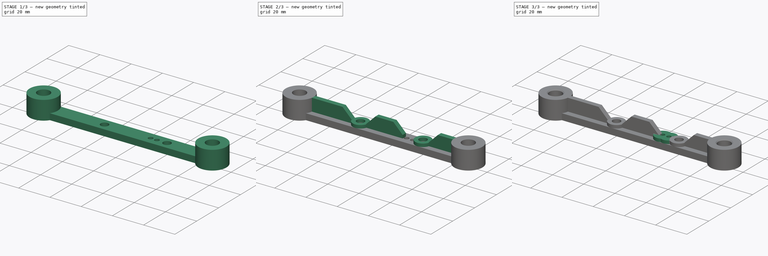
[diagram: build sequence overview — one tinted view per stage of 3, left to right]
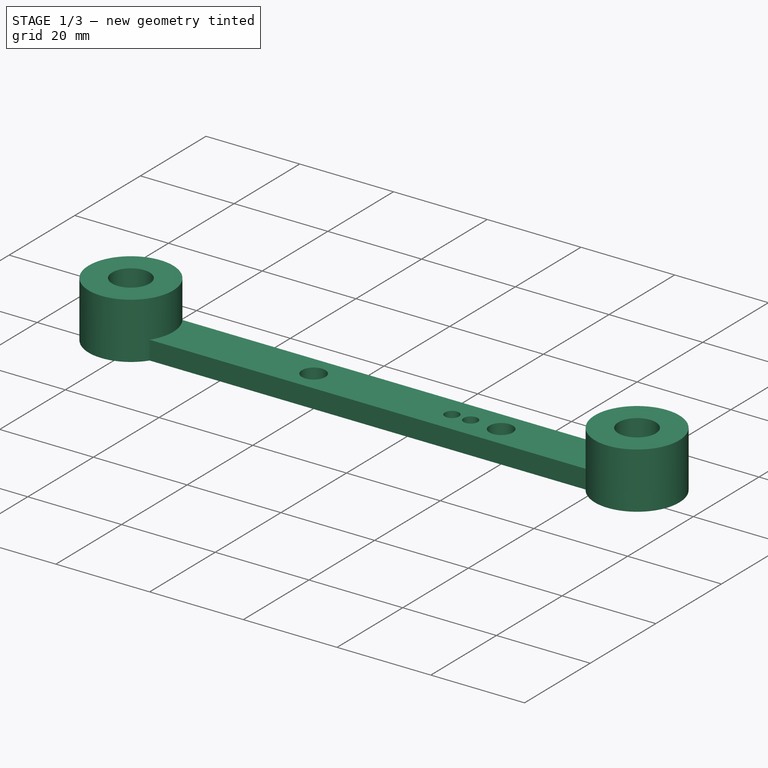
[diagram: stage 1 of 3 — iso view after this stage's code; geometry added in this stage tinted green]
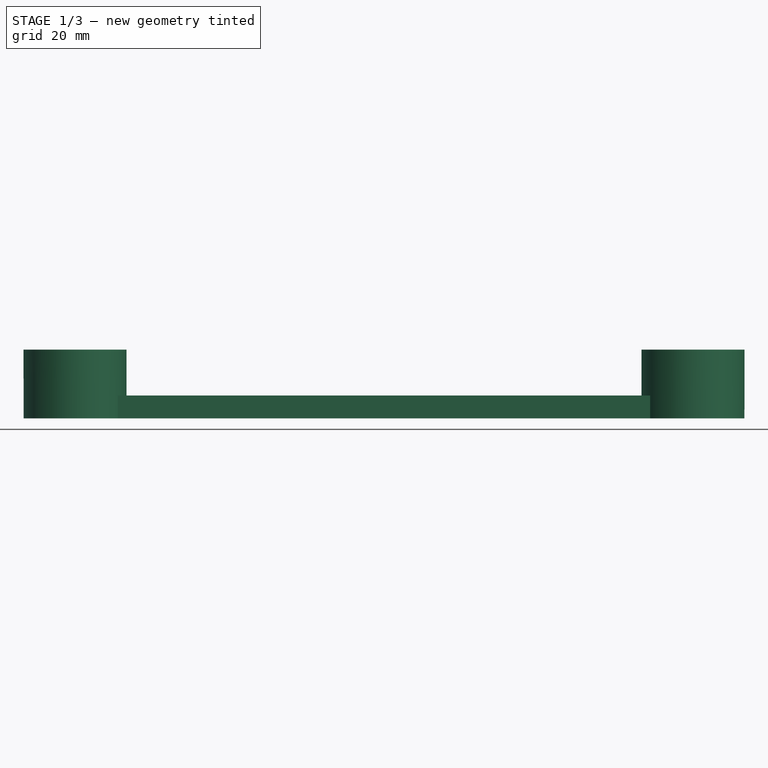
[diagram: stage 1 of 3 — front view after this stage's code; geometry added in this stage tinted green]
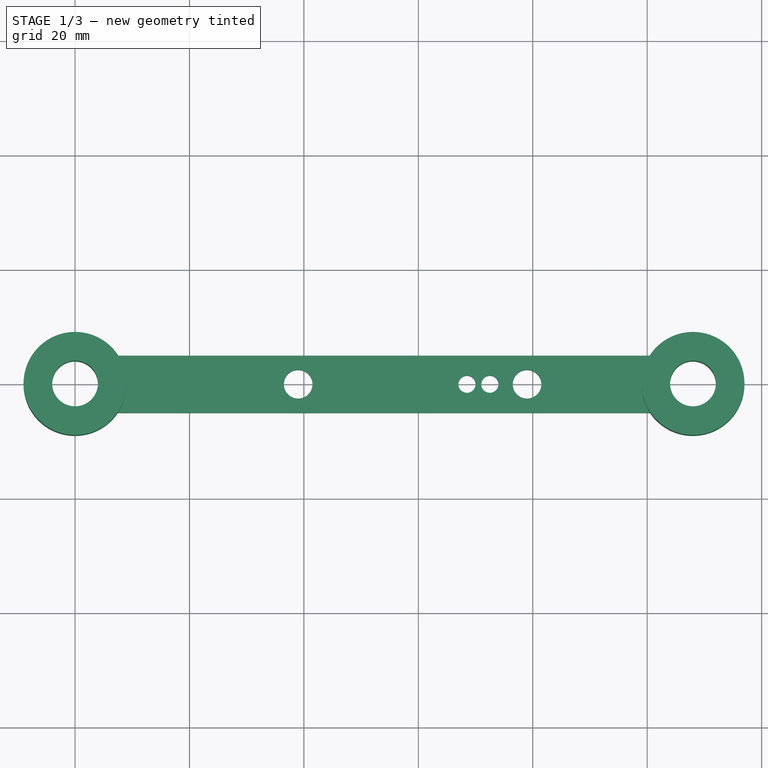
[diagram: stage 1 of 3 — top view after this stage's code; geometry added in this stage tinted green]
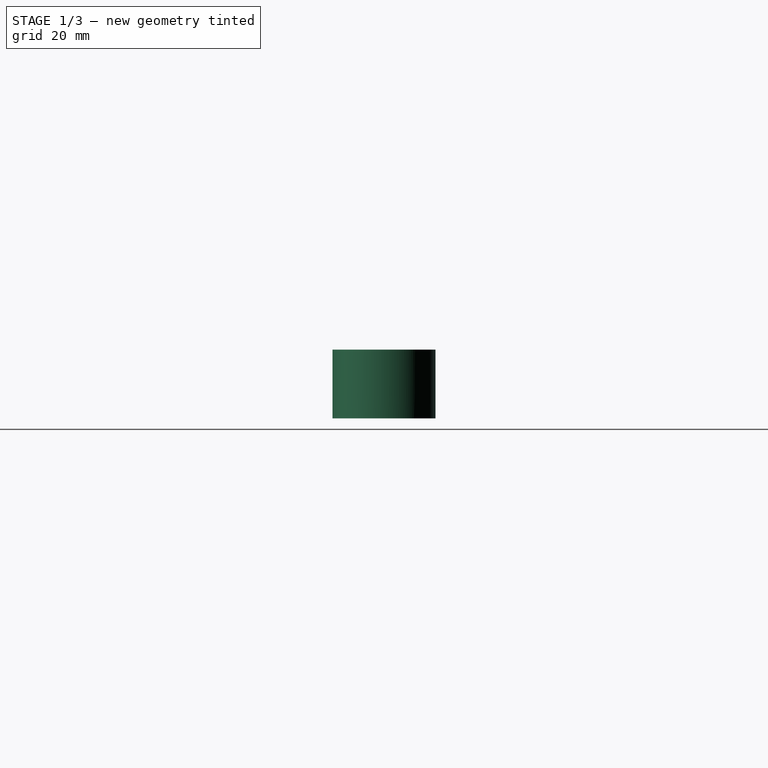
[diagram: stage 1 of 3 — right view after this stage's code; geometry added in this stage tinted green]
FCSTD DOCUMENT  (FreeCAD 0.19R24276 (Git))
Label: Guillotine_part_1_bottom
License: All rights reserved
LicenseURL: http://en.wikipedia.org/wiki/All_rights_reserved
objects: Sketcher::SketchObject×6, PartDesign::Pad×6, PartDesign::Chamfer×1, PartDesign::Body×1
note: 21 computed .brp shape members not serialized (recipe doc carries the construction recipe); baked Part::Feature solids carry a one-line shape summary decoded from their .brp

FEATURE [Sketcher::SketchObject] Sketch
  FullyConstrained = false
  MapMode = 5
  Support = -> [XY_Plane]
  sketch-geometry (12):
    g0: Circle CenterX=0 CenterY=0 CenterZ=0 NormalX=0 NormalY=0 NormalZ=1 AngleXU=0 Radius=4
    g1: ArcOfCircle CenterX=0 CenterY=0 CenterZ=0 NormalX=0 NormalY=0 NormalZ=1 AngleXU=0 Radius=9 StartAngle=0.589031 EndAngle=5.69415
    g2: LineSegment StartX=7.48331 StartY=5 StartZ=0 EndX=100.517 EndY=5 EndZ=0
    g3: LineSegment StartX=7.48331 StartY=-5 StartZ=0 EndX=100.517 EndY=-5 EndZ=0
    g4: Circle CenterX=108 CenterY=0 CenterZ=0 NormalX=0 NormalY=0 NormalZ=1 AngleXU=0 Radius=4
    g5: ArcOfCircle CenterX=108 CenterY=0 CenterZ=0 NormalX=0 NormalY=0 NormalZ=1 AngleXU=0 Radius=9 StartAngle=3.73062 EndAngle=8.83575
    g6: LineSegment StartX=0 StartY=0 StartZ=0 EndX=7.48331 EndY=0 EndZ=0
    g7: LineSegment StartX=54 StartY=41.0702 StartZ=0 EndX=54 EndY=0 EndZ=0
    g8: Circle CenterX=39 CenterY=0 CenterZ=0 NormalX=0 NormalY=0 NormalZ=1 AngleXU=0 Radius=2.5
    g9: Circle CenterX=79 CenterY=0 CenterZ=0 NormalX=0 NormalY=0 NormalZ=1 AngleXU=0 Radius=2.5
    g10: Circle CenterX=72.5 CenterY=0 CenterZ=0 NormalX=0 NormalY=0 NormalZ=1 AngleXU=0 Radius=1.5
    g11: Circle CenterX=68.5 CenterY=0 CenterZ=0 NormalX=0 NormalY=0 NormalZ=1 AngleXU=0 Radius=1.5
  constraints (33):
    c: Coincident(g0,g-1)
    c: Diameter(g0) = 8
    c: Coincident(g1,g-1)
    c: Diameter(g1) = 18
    c: Horizontal(g2)
    c: Horizontal(g3)
    c: Diameter(g4) = 8
    c: Diameter(g5) = 18
    c: Coincident(g5,g4)
    c: Coincident(g5,g3)
    c: Coincident(g5,g2)
    c: Coincident(g1,g2)
    c: Coincident(g1,g3)
    c: Coincident(g6,g0)
    c: PointOnObject(g6,g-1)
    c: Symmetric(g1,g1,g6)
    c: DistanceY(g1,g1) = 10
    c: DistanceX(g0,g4) = 108
    c: Horizontal(g4,g0)
    c: Vertical(g7)
    c: Symmetric(g0,g4,g7)
    c: PointOnObject(g8,g-1)
    c: PointOnObject(g9,g-1)
    c: Diameter(g8) = 5
    c: Equal(g8,g9)
    c: DistanceX(g8,g7) = 15
    c: DistanceX(g7,g9) = 25
    c: PointOnObject(g10,g-1)
    c: PointOnObject(g11,g-1)
    c: Diameter(g10) = 3
    c: Equal(g10,g11)
    c: DistanceX(g10,g9) = 6.5
    c: DistanceX(g11,g10) = 4
FEATURE [PartDesign::Pad] Pad
  Direction = (1,1,1)
  Length = 4
  Length2 = 100
  Profile = -> Sketch
  Type = 0
FEATURE [Sketcher::SketchObject] Sketch001
  FullyConstrained = true
  MapMode = 5
  Placement = pos=(0,0,4) rot=(0,0,1;0rad)
  Support = -> [Pad]
  sketch-geometry (4):
    g0: Circle CenterX=0 CenterY=0 CenterZ=0 NormalX=0 NormalY=0 NormalZ=1 AngleXU=0 Radius=9
    g1: Circle CenterX=108 CenterY=0 CenterZ=0 NormalX=0 NormalY=0 NormalZ=1 AngleXU=0 Radius=9
    g2: Circle CenterX=0 CenterY=0 CenterZ=0 NormalX=0 NormalY=0 NormalZ=1 AngleXU=0 Radius=4
    g3: Circle CenterX=108 CenterY=0 CenterZ=0 NormalX=0 NormalY=0 NormalZ=1 AngleXU=0 Radius=4
  constraints (9):
    c: Coincident(g0,g-1)
    c: PointOnObject(g1,g-1)
    c: DistanceX(g0,g1) = 108
    c: Diameter(g0) = 18
    c: Equal(g0,g1)
    c: Coincident(g2,g0)
    c: Coincident(g3,g1)
    c: Diameter(g3) = 8
    c: Equal(g3,g2)
FEATURE [PartDesign::Pad] Pad001
  BaseFeature = -> Pad
  Direction = (1,1,1)
  Length = 8
  Length2 = 100
  Profile = -> Sketch001
  Type = 0
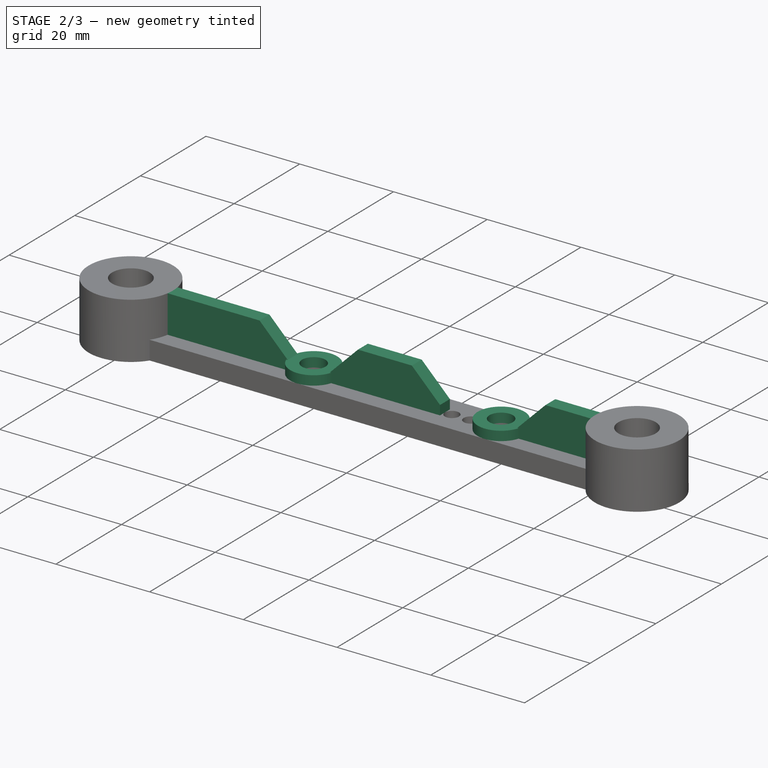
[diagram: stage 2 of 3 — iso view after this stage's code; geometry added in this stage tinted green]
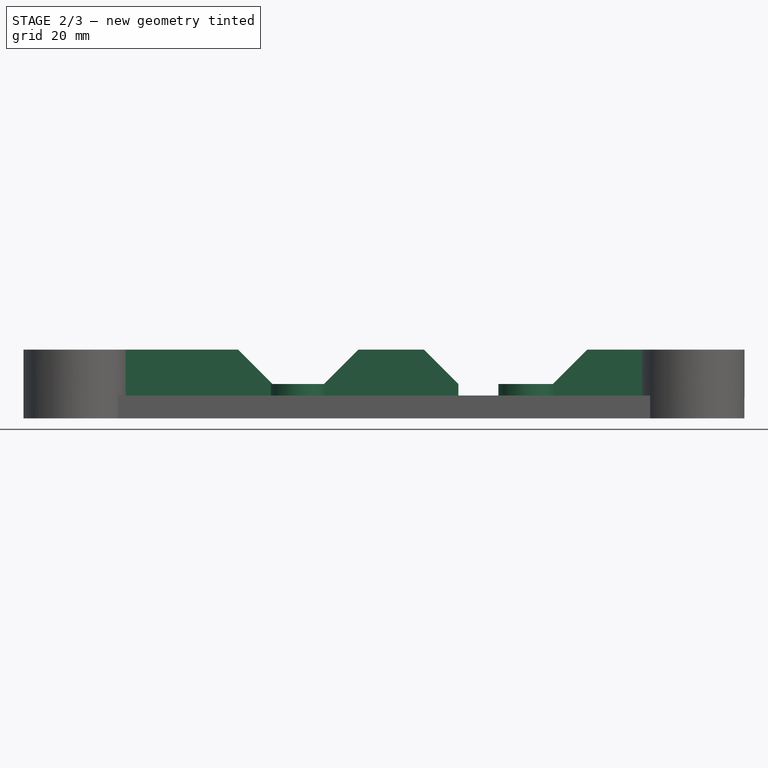
[diagram: stage 2 of 3 — front view after this stage's code; geometry added in this stage tinted green]
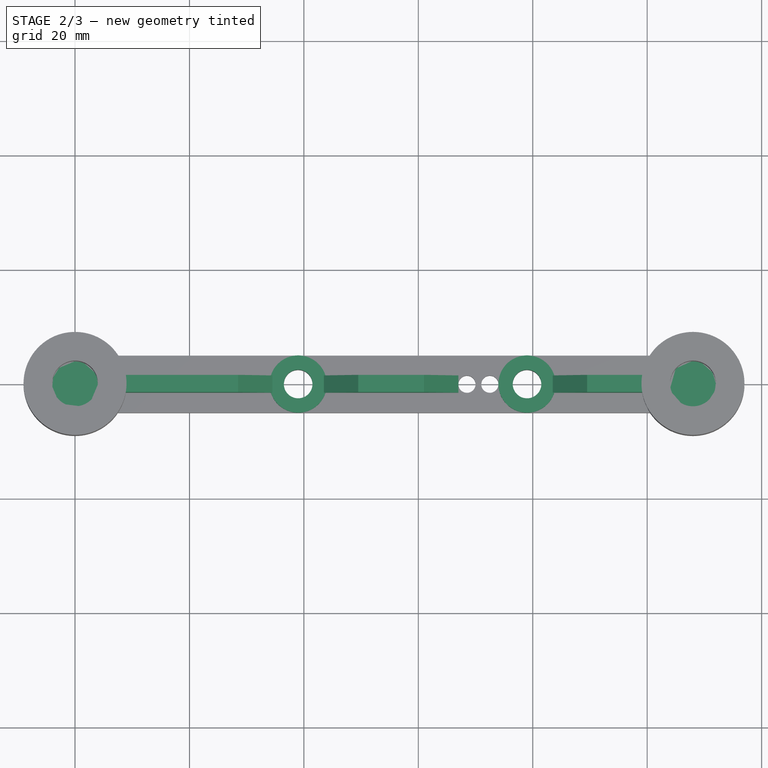
[diagram: stage 2 of 3 — top view after this stage's code; geometry added in this stage tinted green]
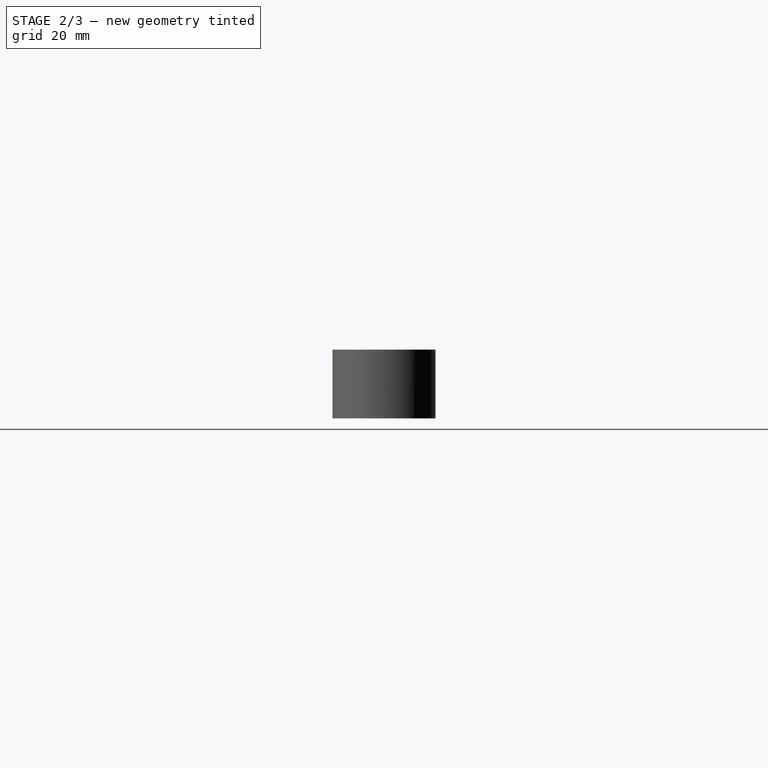
[diagram: stage 2 of 3 — right view after this stage's code; geometry added in this stage tinted green]
FEATURE [Sketcher::SketchObject] Sketch002
  FullyConstrained = true
  MapMode = 5
  Placement = pos=(0,0,0) rot=(1,0,0;3.14159rad)
  Support = -> [Pad001]
  sketch-geometry (2):
    g0: Circle CenterX=108 CenterY=0 CenterZ=0 NormalX=0 NormalY=0 NormalZ=1 AngleXU=0 Radius=4
    g1: Circle CenterX=0 CenterY=0 CenterZ=0 NormalX=0 NormalY=0 NormalZ=1 AngleXU=0 Radius=4
  constraints (5):
    c: PointOnObject(g0,g-1)
    c: Coincident(g1,g-1)
    c: DistanceX(g1,g0) = 108
    c: Diameter(g1) = 8
    c: Equal(g1,g0)
FEATURE [PartDesign::Pad] Pad002
  BaseFeature = -> Pad001
  Direction = (1,1,1)
  Length = 3
  Length2 = 100
  Profile = -> Sketch002
  Reversed = true
  Type = 0
FEATURE [Sketcher::SketchObject] Sketch003
  AttachmentOffset = pos=(0,0,-5) rot=(0,0,1;0rad)
  FullyConstrained = false
  MapMode = 5
  Placement = pos=(0,-9e-16,-1.1e-15) rot=(1,0,0;1.5708rad)
  Support = -> [Pad002]
  sketch-geometry (41):
    g0: LineSegment StartX=8 StartY=12 StartZ=0 EndX=34.5 EndY=12 EndZ=0
    g1: LineSegment StartX=100 StartY=12 StartZ=0 EndX=100 EndY=4 EndZ=0
    g2: LineSegment StartX=100 StartY=4 StartZ=0 EndX=8 EndY=4 EndZ=0
    g3: LineSegment StartX=8 StartY=4 StartZ=0 EndX=8 EndY=12 EndZ=0
    g4: LineSegment StartX=39 StartY=14.3034 StartZ=0 EndX=39 EndY=-8.22533 EndZ=0
    g5: LineSegment StartX=79 StartY=29.8425 StartZ=0 EndX=79 EndY=-7.60026 EndZ=0
    g6: LineSegment StartX=54 StartY=36.9878 StartZ=0 EndX=54 EndY=-15.3094 EndZ=0
    g7: LineSegment StartX=34.5 StartY=14.3034 StartZ=0 EndX=43.5 EndY=14.3034 EndZ=0
    g8: LineSegment StartX=43.5 StartY=14.3034 StartZ=0 EndX=43.5 EndY=4 EndZ=0
    g9: LineSegment StartX=43.5 StartY=4 StartZ=0 EndX=34.5 EndY=4 EndZ=0
    g10: LineSegment StartX=34.5 StartY=4 StartZ=0 EndX=34.5 EndY=14.3034 EndZ=0
    g11: LineSegment StartX=74.5 StartY=4 StartZ=0 EndX=83.5 EndY=4 EndZ=0
    g12: LineSegment StartX=83.5 StartY=4 StartZ=0 EndX=83.5 EndY=29.8425 EndZ=0
    g13: LineSegment StartX=83.5 StartY=29.8425 StartZ=0 EndX=74.5 EndY=29.8425 EndZ=0
    g14: LineSegment StartX=74.5 StartY=29.8425 StartZ=0 EndX=74.5 EndY=4 EndZ=0
    g15: LineSegment StartX=43.5 StartY=12 StartZ=0 EndX=74.5 EndY=12 EndZ=0
    g16: LineSegment StartX=34.5 StartY=4 StartZ=0 EndX=34.5 EndY=12 EndZ=0
    g17: LineSegment StartX=43.5 StartY=4 StartZ=0 EndX=43.5 EndY=12 EndZ=0
    g18: LineSegment StartX=34.5 StartY=4 StartZ=0 EndX=8 EndY=4 EndZ=0
    g19: LineSegment StartX=43.5 StartY=4 StartZ=0 EndX=74.5 EndY=4 EndZ=0
    g20: LineSegment StartX=83.5 StartY=12 StartZ=0 EndX=100 EndY=12 EndZ=0
    g21: LineSegment StartX=74.5 StartY=4 StartZ=0 EndX=74.5 EndY=12 EndZ=0
    g22: LineSegment StartX=83.5 StartY=4 StartZ=0 EndX=83.5 EndY=12 EndZ=0
    g23: LineSegment StartX=83.5 StartY=4 StartZ=0 EndX=100 EndY=4 EndZ=0
    g24: LineSegment StartX=72.5 StartY=21.7365 StartZ=0 EndX=72.5 EndY=-3.40455 EndZ=0
    g25: LineSegment StartX=68.5 StartY=-3.4812 StartZ=0 EndX=68.5 EndY=23.9594 EndZ=0
    g26: LineSegment StartX=67 StartY=4 StartZ=0 EndX=67 EndY=12 EndZ=0
    g27: LineSegment StartX=67 StartY=12 StartZ=0 EndX=43.5 EndY=12 EndZ=0
    g28: LineSegment StartX=67 StartY=12 StartZ=0 EndX=67 EndY=4 EndZ=0
    g29: LineSegment StartX=43.5 StartY=4 StartZ=0 EndX=67 EndY=4 EndZ=0
    g30: LineSegment StartX=83.5 StartY=6 StartZ=0 EndX=89.5 EndY=12 EndZ=0
    g31: LineSegment StartX=83.5 StartY=4 StartZ=0 EndX=83.5 EndY=6 EndZ=0
    g32: LineSegment StartX=89.5 StartY=12 StartZ=0 EndX=100 EndY=12 EndZ=0
    g33: LineSegment StartX=28.5 StartY=12 StartZ=0 EndX=34.5 EndY=6 EndZ=0
    g34: LineSegment StartX=34.5 StartY=4 StartZ=0 EndX=34.5 EndY=6 EndZ=0
    g35: LineSegment StartX=28.5 StartY=12 StartZ=0 EndX=8 EndY=12 EndZ=0
    g36: LineSegment StartX=43.5 StartY=6 StartZ=0 EndX=49.5 EndY=12 EndZ=0
    g37: LineSegment StartX=61 StartY=12 StartZ=0 EndX=67 EndY=6 EndZ=0
    g38: LineSegment StartX=67 StartY=4 StartZ=0 EndX=67 EndY=6 EndZ=0
    g39: LineSegment StartX=61 StartY=12 StartZ=0 EndX=49.5 EndY=12 EndZ=0
    g40: LineSegment StartX=43.5 StartY=6 StartZ=0 EndX=43.5 EndY=4 EndZ=0
  constraints (104):
    c: Coincident(g20,g1)
    c: Coincident(g1,g2)
    c: Coincident(g2,g3)
    c: Coincident(g3,g0)
    c: Horizontal(g0)
    c: Horizontal(g2)
    c: Vertical(g1)
    c: Vertical(g3)
    c: DistanceX(g-1,g2) = 8
    c: DistanceX(g-1,g1) = 100
    c: Vertical(g4)
    c: Vertical(g5)
    c: Vertical(g6)
    c: DistanceX(g-1,g6) = 54
    c: DistanceX(g4,g6) = 15
    c: DistanceX(g6,g5) = 25
    c: Coincident(g7,g8)
    c: Coincident(g8,g9)
    c: Coincident(g9,g10)
    c: Coincident(g10,g7)
    c: Horizontal(g7)
    c: Horizontal(g9)
    c: Vertical(g8)
    c: Vertical(g10)
    c: PointOnObject(g8,g2)
    c: Symmetric(g7,g7,g4)
    c: DistanceX(g7,g7) = 9
    c: Coincident(g11,g12)
    c: Coincident(g12,g13)
    c: Coincident(g13,g14)
    c: Coincident(g14,g11)
    c: Horizontal(g11)
    c: Horizontal(g13)
    c: Vertical(g12)
    c: Vertical(g14)
    c: PointOnObject(g11,g2)
    c: Symmetric(g13,g12,g5)
    c: DistanceX(g13,g13) = 9
    c: DistanceY(g-1,g2) = 4
    c: DistanceY(g-1,g0) = 12
    c: PointOnObject(g0,g10)
    c: Tangent(g0,g15)
    c: PointOnObject(g15,g8)
    c: Coincident(g16,g9)
    c: Coincident(g16,g0)
    c: Coincident(g17,g8)
    c: Coincident(g17,g15)
    c: Coincident(g18,g16)
    c: Coincident(g18,g3)
    c: Coincident(g19,g17)
    c: Coincident(g19,g11)
    c: PointOnObject(g15,g14)
    c: Tangent(g15,g20)
    c: PointOnObject(g20,g12)
    c: Coincident(g21,g19)
    c: Coincident(g21,g15)
    c: Coincident(g22,g11)
    c: Coincident(g22,g20)
    c: Coincident(g23,g22)
    c: Coincident(g23,g1)
    c: Vertical(g24)
    c: DistanceX(g24,g5) = 6.5
    c: Vertical(g25)
    c: DistanceX(g25,g24) = 4
    c: Vertical(g26)
    c: PointOnObject(g26,g15)
    c: PointOnObject(g26,g2)
    c: DistanceX(g26,g5) = 12
    c: Coincident(g27,g26)
    c: Coincident(g27,g17)
    c: Coincident(g28,g27)
    c: Coincident(g28,g26)
    c: Coincident(g29,g17)
    c: Coincident(g29,g28)
    c: Angle(g20,g30) = 0.785398
    c: PointOnObject(g30,g12)
    c: DistanceY(g22,g30) = 2
    c: PointOnObject(g30,g20)
    c: Coincident(g31,g23)
    c: Coincident(g32,g30)
    c: Coincident(g32,g1)
    c: Coincident(g31,g30)
    c: Angle(g0,g33) = 2.35619
    c: PointOnObject(g33,g10)
    c: DistanceY(g16,g33) = 2
    c: PointOnObject(g33,g0)
    c: Coincident(g34,g18)
    c: Coincident(g35,g33)
    c: Coincident(g35,g3)
    c: Coincident(g33,g34)
    c: Angle(g27,g37) = 2.35619
    c: Angle(g36,g27) = 2.35619
    c: PointOnObject(g36,g17)
    c: PointOnObject(g37,g26)
    c: DistanceY(g28,g37) = 2
    c: DistanceY(g17,g36) = 2
    c: PointOnObject(g36,g27)
    c: PointOnObject(g37,g27)
    c: Coincident(g38,g29)
    c: Coincident(g39,g37)
    c: Coincident(g40,g36)
    c: Coincident(g29,g40)
    c: Coincident(g36,g39)
    c: Coincident(g38,g37)
FEATURE [PartDesign::Pad] Pad003
  BaseFeature = -> Pad002
  Direction = (1,1,1)
  Length = 3
  Length2 = 100
  Midplane = true
  Profile = -> Sketch003
  Type = 0
FEATURE [Sketcher::SketchObject] Sketch004
  FullyConstrained = true
  MapMode = 5
  Placement = pos=(0,0,4) rot=(0,0,1;0rad)
  Support = -> [Pad003]
  sketch-geometry (4):
    g0: Circle CenterX=39 CenterY=0 CenterZ=0 NormalX=0 NormalY=0 NormalZ=1 AngleXU=0 Radius=5
    g1: Circle CenterX=79 CenterY=0 CenterZ=0 NormalX=0 NormalY=0 NormalZ=1 AngleXU=0 Radius=5
    g2: Circle CenterX=39 CenterY=0 CenterZ=0 NormalX=0 NormalY=0 NormalZ=1 AngleXU=0 Radius=2.5
    g3: Circle CenterX=79 CenterY=0 CenterZ=0 NormalX=0 NormalY=0 NormalZ=1 AngleXU=0 Radius=2.5
  constraints (10):
    c: PointOnObject(g0,g-1)
    c: PointOnObject(g1,g-1)
    c: DistanceX(g-1,g0) = 39
    c: DistanceX(g0,g1) = 40
    c: Diameter(g0) = 10
    c: Equal(g0,g1)
    c: Coincident(g2,g0)
    c: Coincident(g3,g1)
    c: Diameter(g2) = 5
    c: Equal(g2,g3)
FEATURE [PartDesign::Pad] Pad004
  BaseFeature = -> Pad003
  Direction = (1,1,1)
  Length = 2
  Length2 = 100
  Profile = -> Sketch004
  Type = 0
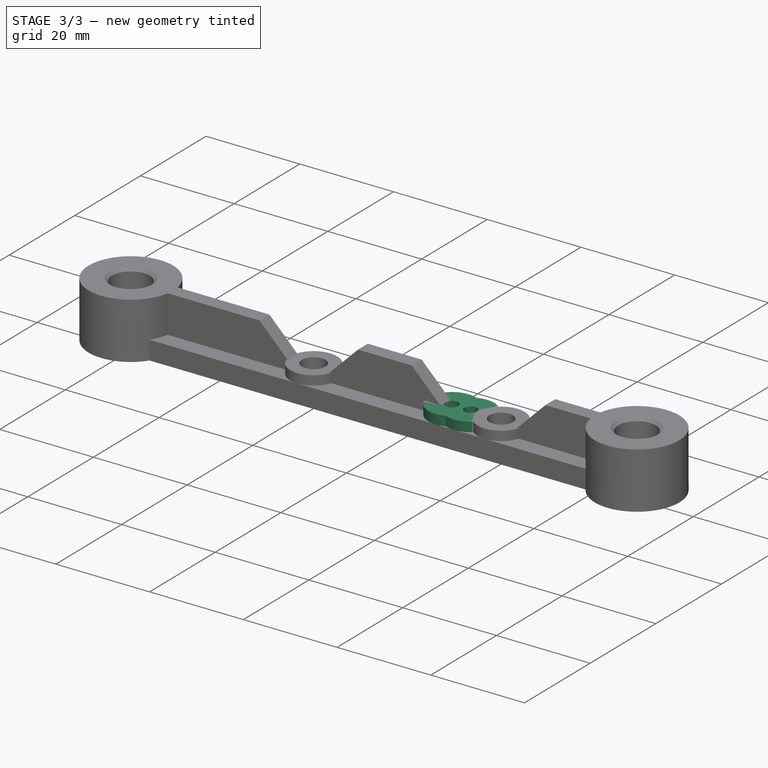
[diagram: stage 3 of 3 — iso view after this stage's code; geometry added in this stage tinted green]
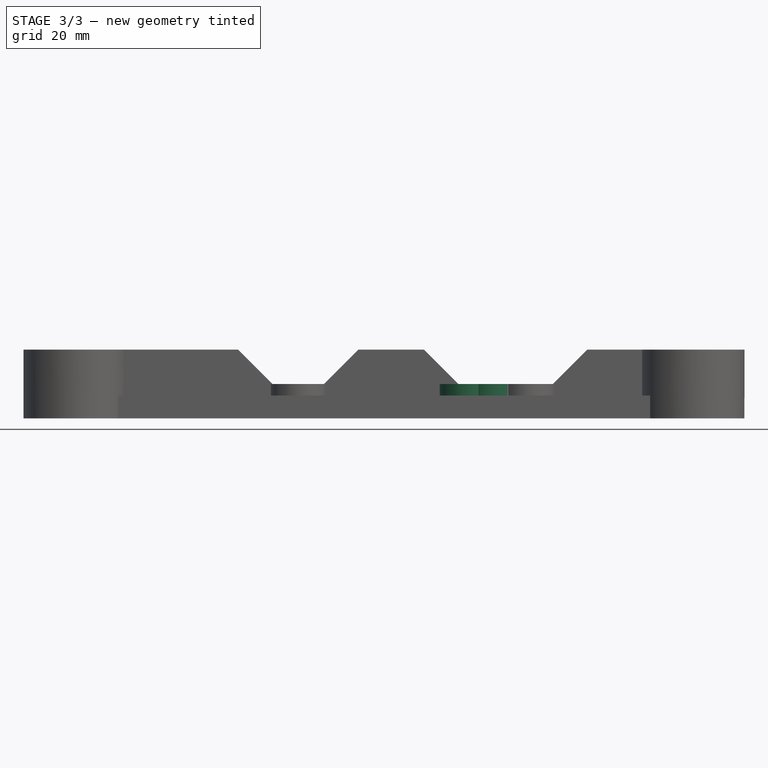
[diagram: stage 3 of 3 — front view after this stage's code; geometry added in this stage tinted green]
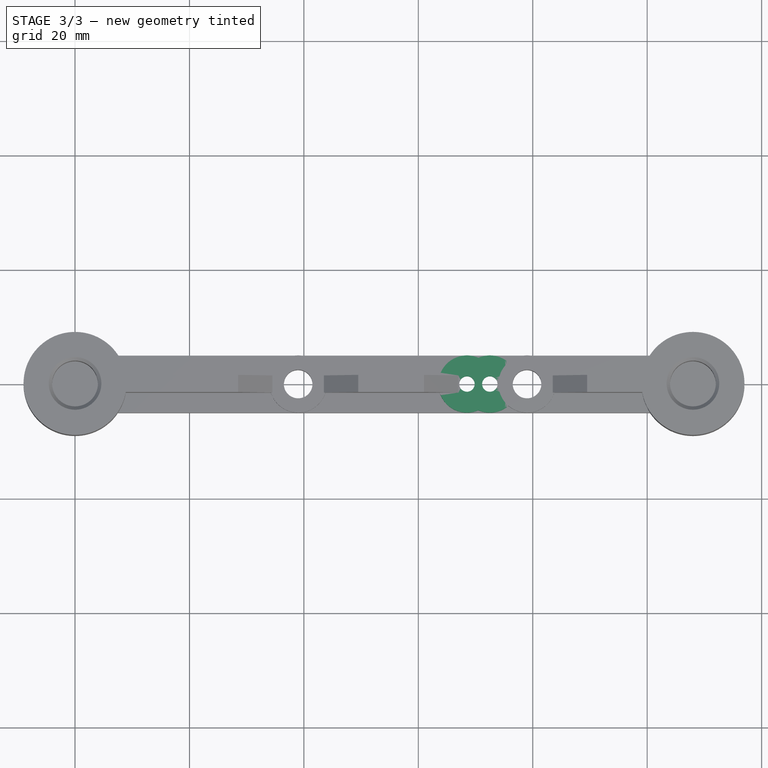
[diagram: stage 3 of 3 — top view after this stage's code; geometry added in this stage tinted green]
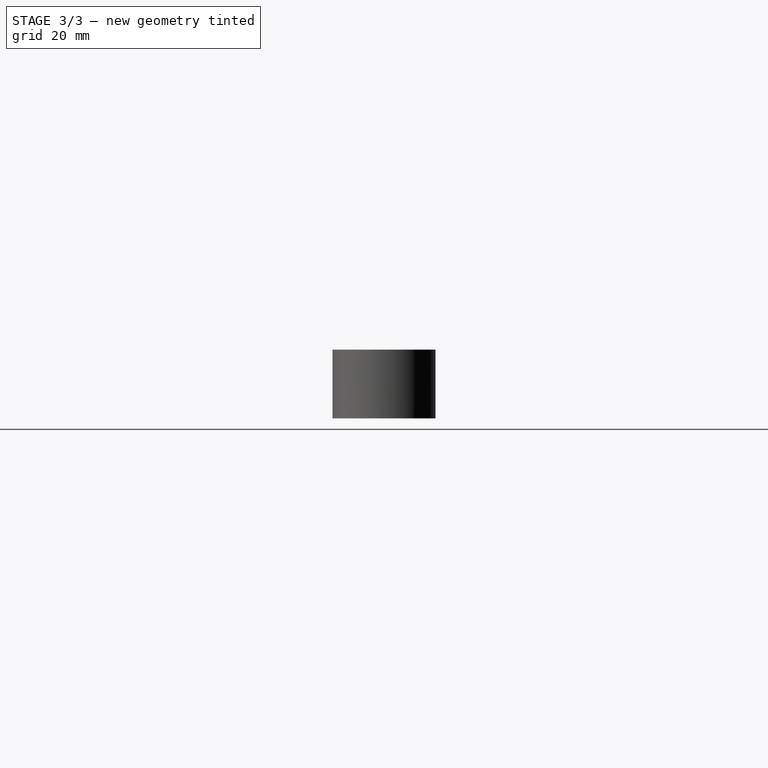
[diagram: stage 3 of 3 — right view after this stage's code; geometry added in this stage tinted green]
FEATURE [PartDesign::Chamfer] Chamfer
  Angle = 45
  Base = -> Pad004 [Edge63,Edge111]
  BaseFeature = -> Pad004
  ChamferType = 0
  FlipDirection = false
  Size = 0.6
  Size2 = 1
  SupportTransform = false
FEATURE [Sketcher::SketchObject] Sketch005
  FullyConstrained = true
  MapMode = 5
  Placement = pos=(0,0,4) rot=(0,0,1;0rad)
  Support = -> [Chamfer]
  sketch-geometry (6):
    g0: Circle CenterX=68.5 CenterY=0 CenterZ=0 NormalX=0 NormalY=0 NormalZ=1 AngleXU=0 Radius=1.35
    g1: Circle CenterX=72.5 CenterY=0 CenterZ=0 NormalX=0 NormalY=0 NormalZ=1 AngleXU=0 Radius=1.35
    g2: ArcOfCircle CenterX=68.5 CenterY=0 CenterZ=0 NormalX=0 NormalY=0 NormalZ=1 AngleXU=0 Radius=5 StartAngle=1.15928 EndAngle=5.12391
    g3: ArcOfCircle CenterX=72.5 CenterY=0 CenterZ=0 NormalX=0 NormalY=0 NormalZ=1 AngleXU=0 Radius=5 StartAngle=0.863212 EndAngle=1.98231
    g4: ArcOfCircle CenterX=79 CenterY=0 CenterZ=0 NormalX=0 NormalY=0 NormalZ=1 AngleXU=0 Radius=5 StartAngle=2.27838 EndAngle=4.0048
    g5: ArcOfCircle CenterX=72.5 CenterY=0 CenterZ=0 NormalX=0 NormalY=0 NormalZ=1 AngleXU=0 Radius=5 StartAngle=4.30087 EndAngle=5.41997
  constraints (19):
    c: PointOnObject(g0,g-1)
    c: PointOnObject(g1,g-1)
    c: DistanceX(g-1,g0) = 68.5
    c: DistanceX(g0,g1) = 4
    c: Diameter(g0) = 2.7
    c: Equal(g0,g1)
    c: Coincident(g2,g0)
    c: Coincident(g3,g1)
    c: Diameter(g3) = 10
    c: Equal(g3,g2)
    c: DistanceX(g1,g4) = 6.5
    c: Equal(g3,g4)
    c: Horizontal(g4,g1)
    c: Equal(g3,g5)
    c: Coincident(g3,g2)
    c: Coincident(g3,g5)
    c: Coincident(g2,g5)
    c: Coincident(g4,g3)
    c: Coincident(g4,g5)
FEATURE [PartDesign::Pad] Pad005
  BaseFeature = -> Chamfer
  Direction = (1,1,1)
  Length = 2
  Length2 = 100
  Profile = -> Sketch005
  Type = 0
FEATURE [PartDesign::Body] Body
  Group = -> [Sketch,Pad,Sketch001,Pad001,Sketch002,Pad002,Sketch003,Pad003,Sketch004,Pad004,Chamfer,Sketch005,Pad005]
  Origin = -> Origin
  Tip = -> Pad005
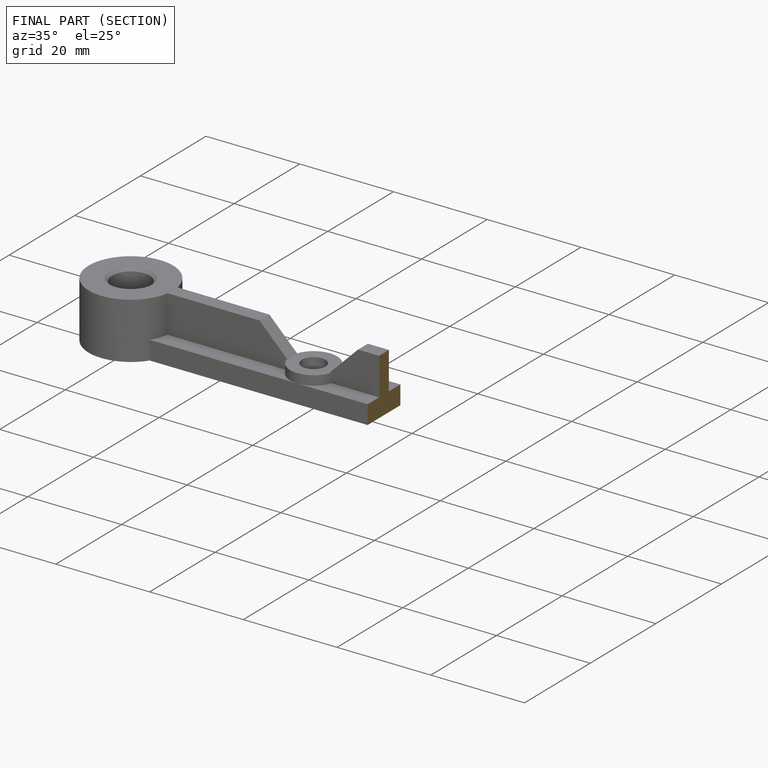
[diagram: finished part — half-section view (interior)]
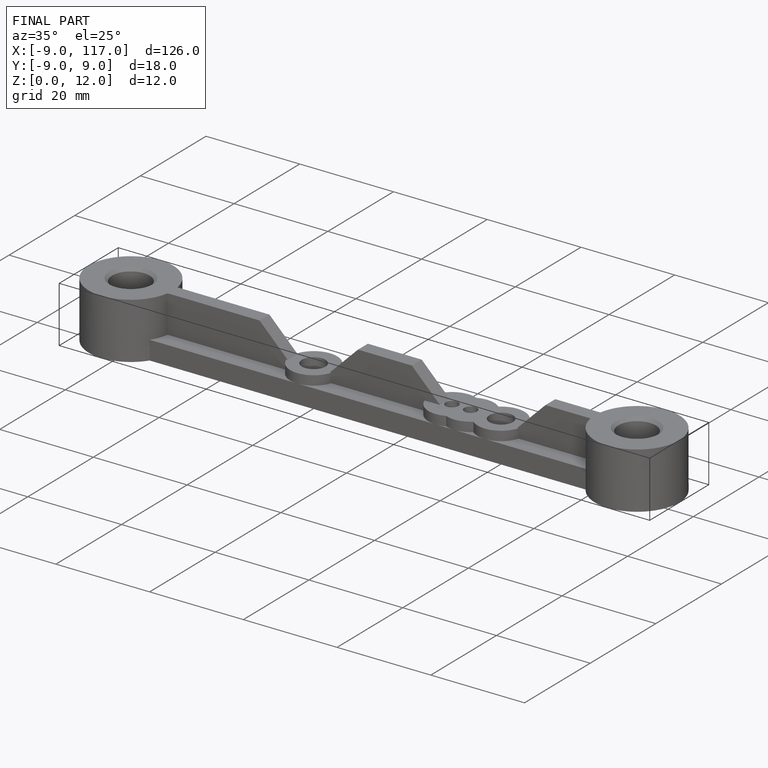
[diagram: finished part — iso view with bounding-box wireframe]
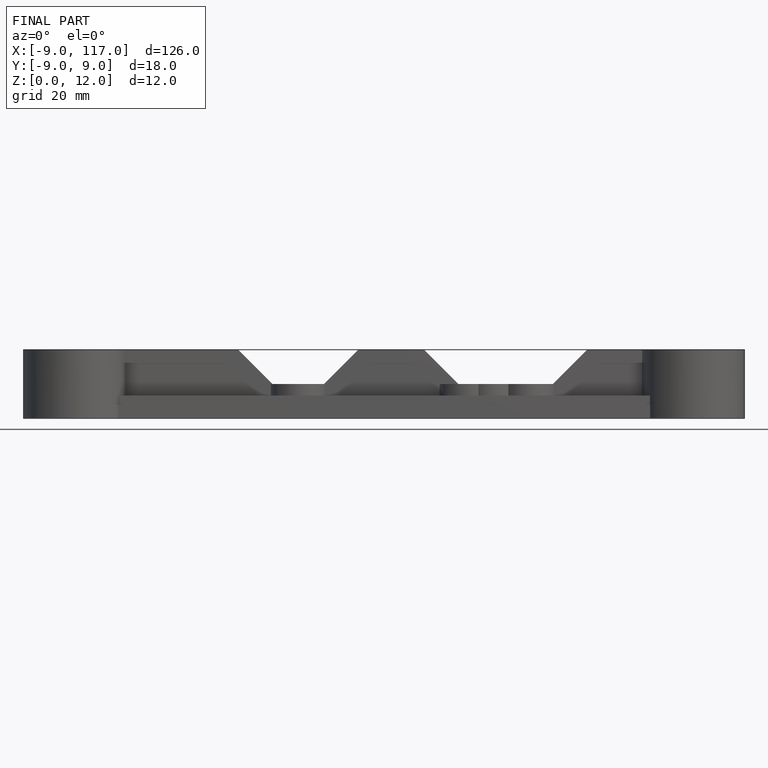
[diagram: finished part — front view with bounding-box wireframe]
